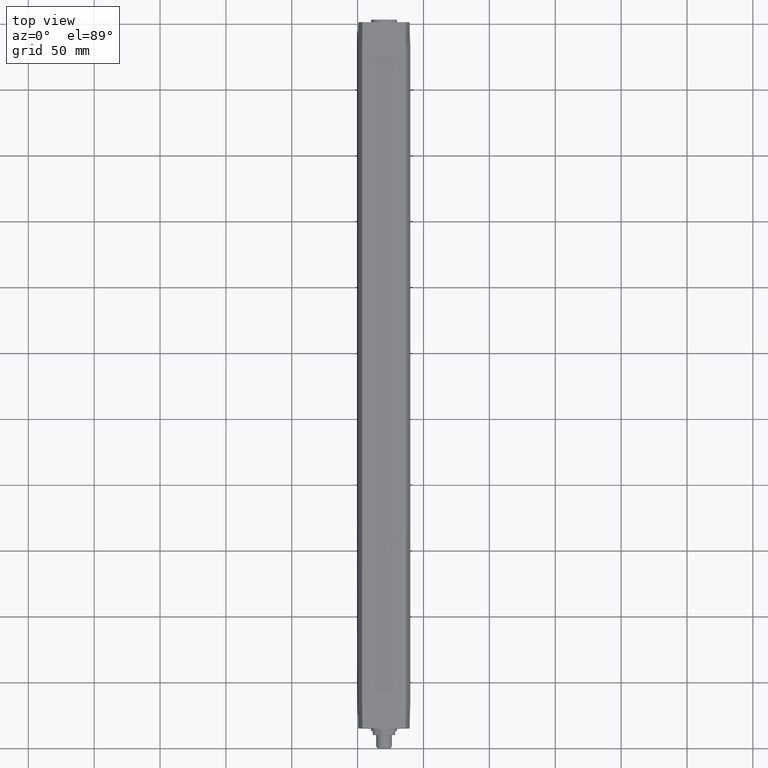
[diagram: clean part render]
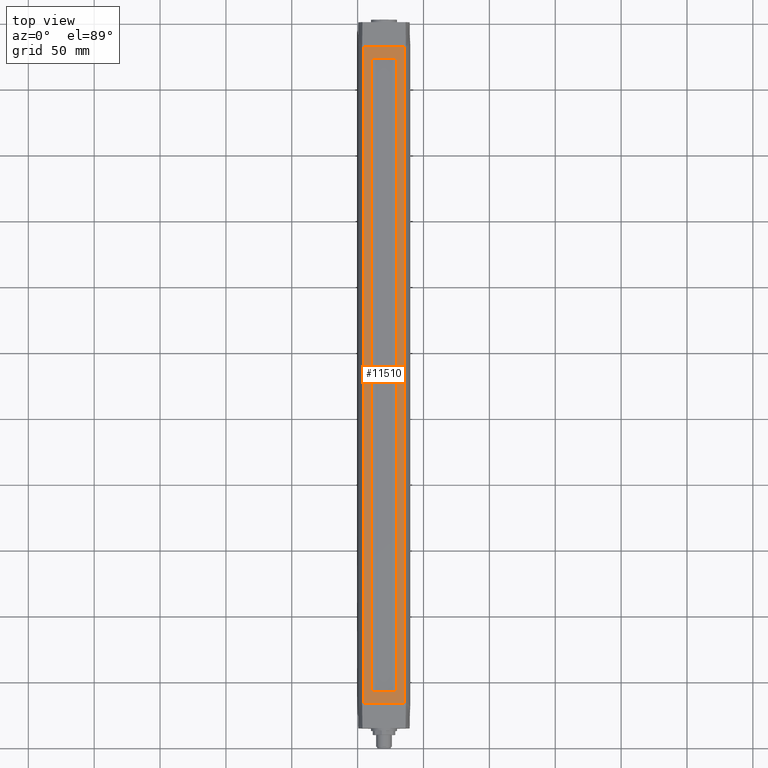
[diagram: same view with one face highlighted and labeled with its STEP entity id]
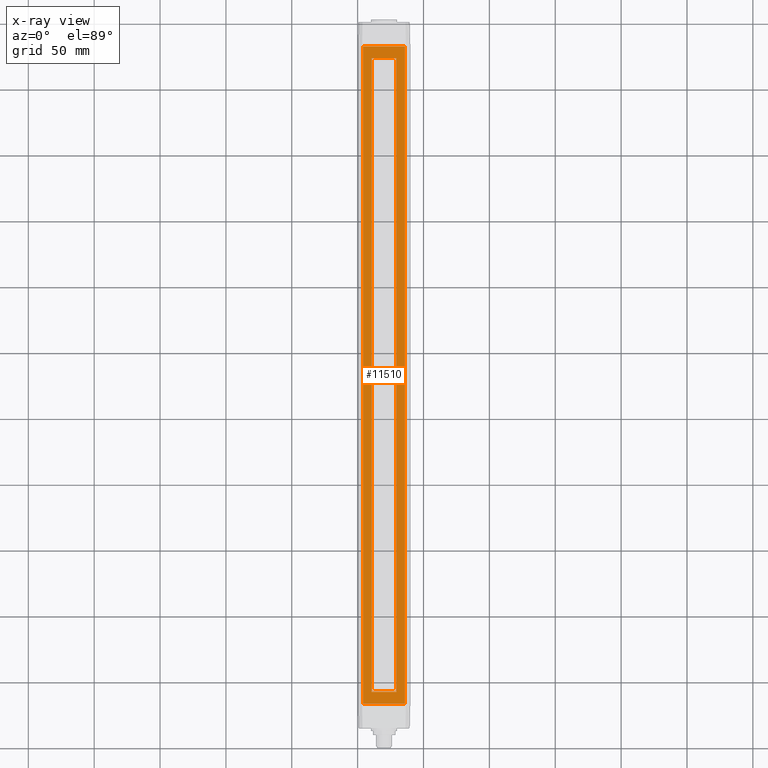
[diagram: x-ray of the same camera — body ghosted, the highlighted face saturated]
A machine part, top view. The second image highlights one B-rep face of the part: STEP entity #11510.
The next image is the same camera in x-ray: the body ghosted, the highlighted face saturated — about 0% of this face is hidden behind the body in this view.
In plain terms, the highlighted planar face has unit normal (-0, 0, 1).
Its self-contained STEP definition (entity closure, byte-faithful):
#1580=CARTESIAN_POINT('',(-9.49999999999999,11.1,415.5));
#1590=VERTEX_POINT('',#1580);
#1620=CARTESIAN_POINT('',(-9.49999999999999,11.1,0.));
#1630=DIRECTION('',(0.,0.,-1.));
#1640=VECTOR('',#1630,1.);
#1650=LINE('',#1620,#1640);
#1660=CARTESIAN_POINT('',(-9.49999999999999,11.1,-65.5));
#1670=VERTEX_POINT('',#1660);
#1680=EDGE_CURVE('',#1590,#1670,#1650,.T.);
#8390=CARTESIAN_POINT('',(0.,11.1,-74.6));
#8400=DIRECTION('',(-1.,0.,0.));
#8410=VECTOR('',#8400,1.);
#8420=LINE('',#8390,#8410);
#8430=CARTESIAN_POINT('',(15.8,11.1,-74.6));
#8440=VERTEX_POINT('',#8430);
#8450=CARTESIAN_POINT('',(-15.8,11.1,-74.6));
#8460=VERTEX_POINT('',#8450);
#8470=EDGE_CURVE('',#8440,#8460,#8420,.T.);
#10150=CARTESIAN_POINT('',(0.,11.1,-65.5));
#10160=DIRECTION('',(1.,0.,0.));
#10170=VECTOR('',#10160,1.);
#10180=LINE('',#10150,#10170);
#10190=CARTESIAN_POINT('',(9.50000000000003,11.1,-65.5));
#10200=VERTEX_POINT('',#10190);
#10210=EDGE_CURVE('',#1670,#10200,#10180,.T.);
#10860=CARTESIAN_POINT('',(9.50000000000003,11.1,0.));
#10870=DIRECTION('',(0.,0.,1.));
#10880=VECTOR('',#10870,1.);
#10890=LINE('',#10860,#10880);
#10900=CARTESIAN_POINT('',(9.50000000000003,11.1,415.5));
#10910=VERTEX_POINT('',#10900);
#10920=EDGE_CURVE('',#10200,#10910,#10890,.T.);
#11100=CARTESIAN_POINT('',(-16.59000378,11.1,78.33000378));
#11110=DIRECTION('',(-0.,1.,0.));
#11120=DIRECTION('',(1.,0.,0.));
#11130=AXIS2_PLACEMENT_3D('',#11100,#11110,#11120);
#11140=PLANE('',#11130);
#11150=ORIENTED_EDGE('',*,*,#1680,.T.);
#11160=CARTESIAN_POINT('',(0.,11.1,415.5));
#11170=DIRECTION('',(-1.,0.,0.));
#11180=VECTOR('',#11170,1.);
#11190=LINE('',#11160,#11180);
#11200=EDGE_CURVE('',#10910,#1590,#11190,.T.);
#11210=ORIENTED_EDGE('',*,*,#11200,.T.);
#11220=ORIENTED_EDGE('',*,*,#10920,.T.);
#11230=ORIENTED_EDGE('',*,*,#10210,.T.);
#11240=EDGE_LOOP('',(#11230,#11220,#11210,#11150));
#11250=FACE_BOUND('',#11240,.T.);
#11260=CARTESIAN_POINT('',(15.8,11.1,0.));
#11270=DIRECTION('',(0.,0.,1.));
#11280=VECTOR('',#11270,1.);
#11290=LINE('',#11260,#11280);
#11300=CARTESIAN_POINT('',(15.8,11.1,424.6));
#11310=VERTEX_POINT('',#11300);
#11320=EDGE_CURVE('',#8440,#11310,#11290,.T.);
#11330=ORIENTED_EDGE('',*,*,#11320,.F.);
#11340=CARTESIAN_POINT('',(0.,11.1,424.6));
#11350=DIRECTION('',(1.,0.,0.));
#11360=VECTOR('',#11350,1.);
#11370=LINE('',#11340,#11360);
#11380=CARTESIAN_POINT('',(-15.8,11.1,424.6));
#11390=VERTEX_POINT('',#11380);
#11400=EDGE_CURVE('',#11390,#11310,#11370,.T.);
#11410=ORIENTED_EDGE('',*,*,#11400,.T.);
#11420=CARTESIAN_POINT('',(-15.8,11.1,0.));
#11430=DIRECTION('',(0.,0.,1.));
#11440=VECTOR('',#11430,1.);
#11450=LINE('',#11420,#11440);
#11460=EDGE_CURVE('',#8460,#11390,#11450,.T.);
#11470=ORIENTED_EDGE('',*,*,#11460,.T.);
#11480=ORIENTED_EDGE('',*,*,#8470,.T.);
#11490=EDGE_LOOP('',(#11480,#11470,#11410,#11330));
#11500=FACE_OUTER_BOUND('',#11490,.T.);
#11510=ADVANCED_FACE('',(#11250,#11500),#11140,.T.);